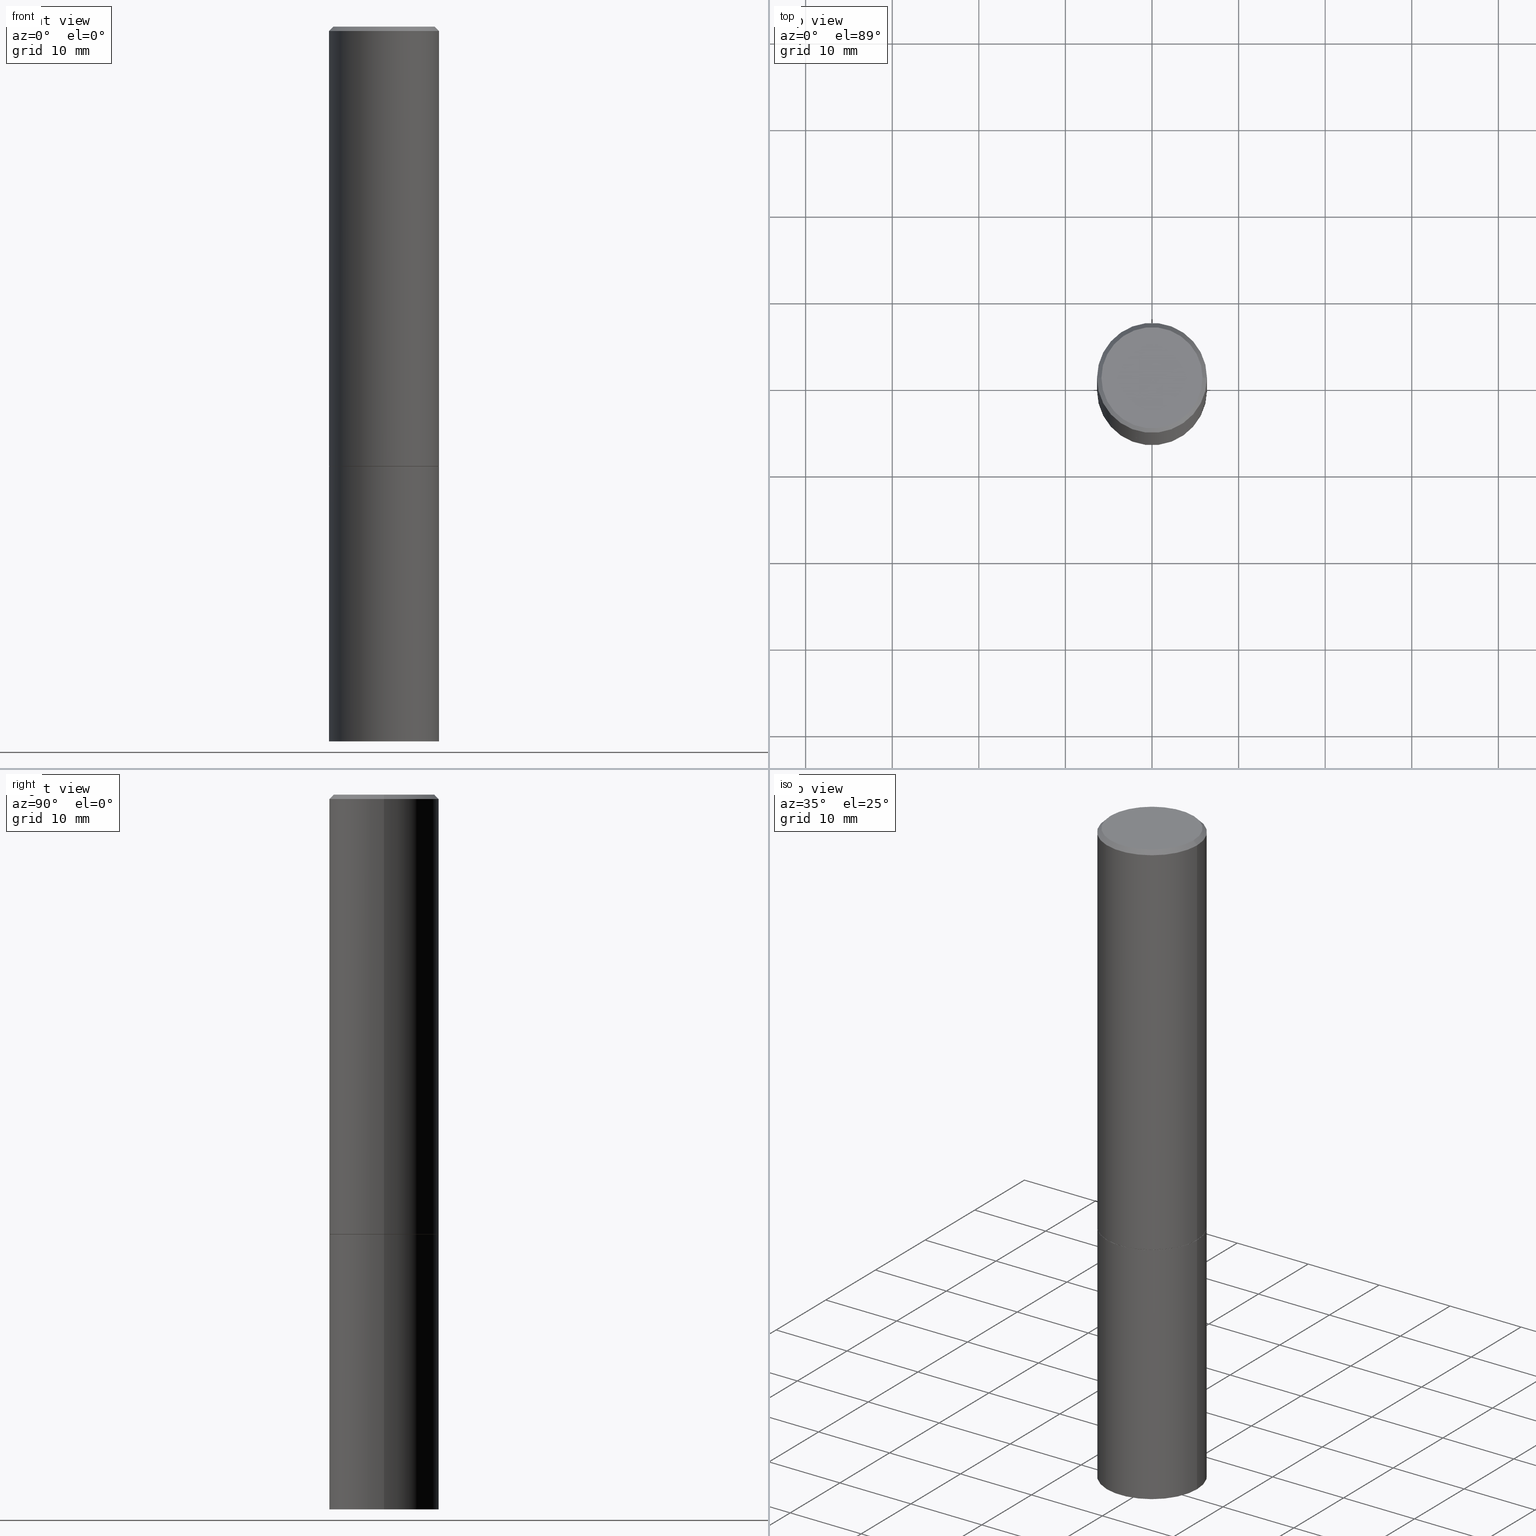
[diagram: canonical four-view strip — front | top / right | iso, engineering-drawing reading convention]
A machine part, canonical four-view strip (front | top / right | iso — engineering-drawing reading convention). The complete STEP part file that produces these views, byte-faithful:
ISO-10303-21;
HEADER;
FILE_DESCRIPTION (( 'STEP AP203' ),
    '1' );
FILE_NAME ('77174.STEP',
    '2024-02-29T15:41:23',
    ( '' ),
    ( '' ),
    'SwSTEP 2.0',
    'SolidWorks 2023',
    '' );
FILE_SCHEMA (( 'CONFIG_CONTROL_DESIGN' ));
ENDSEC;

DATA;
#1 = CC_DESIGN_DATE_AND_TIME_ASSIGNMENT ( #297, #353, ( #211 ) ) ;
#2 = ORIENTED_EDGE ( 'NONE', *, *, #317, .T. ) ;
#3 = VERTEX_POINT ( 'NONE', #323 ) ;
#4 = DIMENSIONAL_EXPONENTS ( 1.000000000000000000, 0.000000000000000000, 0.000000000000000000, 0.000000000000000000, 0.000000000000000000, 0.000000000000000000, 0.000000000000000000 ) ;
#5 = DIRECTION ( 'NONE',  ( 1.000000000000000000, -6.982962677686266711E-15, 4.876225828469314487E-29 ) ) ;
#6 = CYLINDRICAL_SURFACE ( 'NONE', #82, 0.2500000000000000000 ) ;
#7 = DIRECTION ( 'NONE',  ( 1.000000000000000000, -6.982962677686266711E-15, 4.876176775795935793E-29 ) ) ;
#8 = EDGE_LOOP ( 'NONE', ( #115, #71, #154, #20 ) ) ;
#9 = FACE_OUTER_BOUND ( 'NONE', #183, .T. ) ;
#10 = FACE_OUTER_BOUND ( 'NONE', #254, .T. ) ;
#11 = DIRECTION ( 'NONE',  ( -2.445468806185136597E-29, 3.491481338843145583E-15, 1.000000000000000000 ) ) ;
#12 = DATE_AND_TIME ( #351, #313 ) ;
#13 =( GEOMETRIC_REPRESENTATION_CONTEXT ( 3 ) GLOBAL_UNCERTAINTY_ASSIGNED_CONTEXT ( ( #267 ) ) GLOBAL_UNIT_ASSIGNED_CONTEXT ( ( #104, #160, #196 ) ) REPRESENTATION_CONTEXT ( 'NONE', 'WORKASPACE' ) );
#14 = PERSON_AND_ORGANIZATION ( #360, #210 ) ;
#15 = DIRECTION ( 'NONE',  ( -2.445468806185136597E-29, 3.491481338843145583E-15, 1.000000000000000000 ) ) ;
#16 = DATE_AND_TIME ( #45, #304 ) ;
#17 = APPLICATION_CONTEXT ( 'configuration controlled 3d designs of mechanical parts and assemblies' ) ;
#18 = EDGE_CURVE ( 'NONE', #193, #107, #264, .T. ) ;
#19 = PERSON_AND_ORGANIZATION_ROLE ( 'design_supplier' ) ;
#20 = ORIENTED_EDGE ( 'NONE', *, *, #59, .F. ) ;
#21 = VECTOR ( 'NONE', #144, 39.37007874015748143 ) ;
#22 = CC_DESIGN_APPROVAL ( #268, ( #156 ) ) ;
#23 = COORDINATED_UNIVERSAL_TIME_OFFSET ( 5, 0, .BEHIND. ) ;
#24 = VECTOR ( 'NONE', #332, 39.37007874015748143 ) ;
#25 = LOCAL_TIME ( 10, 41, 23.00000000000000000, #49 ) ;
#26 = LINE ( 'NONE', #226, #167 ) ;
#27 = ADVANCED_FACE ( 'NONE', ( #285 ), #312, .T. ) ;
#28 = CARTESIAN_POINT ( 'NONE',  ( -0.2500000000000000000, -7.388781675063007725E-15, -2.000000000000000000 ) ) ;
#29 = VERTEX_POINT ( 'NONE', #343 ) ;
#30 = DIRECTION ( 'NONE',  ( 1.000000000000000000, -6.982962677686262766E-15, 0.000000000000000000 ) ) ;
#31 = ORIENTED_EDGE ( 'NONE', *, *, #18, .T. ) ;
#32 = ADVANCED_FACE ( 'NONE', ( #316 ), #6, .T. ) ;
#33 = VERTEX_POINT ( 'NONE', #123 ) ;
#34 = PLANE ( 'NONE',  #245 ) ;
#35 = APPLICATION_CONTEXT ( 'configuration controlled 3d designs of mechanical parts and assemblies' ) ;
#36 = CARTESIAN_POINT ( 'NONE',  ( 4.890937612370287172E-31, -6.982962677686310098E-17, -0.02000000000000005593 ) ) ;
#37 = CARTESIAN_POINT ( 'NONE',  ( 0.000000000000000000, 0.000000000000000000, 0.000000000000000000 ) ) ;
#38 = EDGE_CURVE ( 'NONE', #135, #43, #155, .T. ) ;
#39 = LINE ( 'NONE', #212, #232 ) ;
#40 = LINE ( 'NONE', #345, #333 ) ;
#41 = APPROVAL_DATE_TIME ( #105, #292 ) ;
#42 = DIRECTION ( 'NONE',  ( 1.000000000000000000, -6.982962677686266711E-15, 0.000000000000000000 ) ) ;
#43 = VERTEX_POINT ( 'NONE', #98 ) ;
#44 = EDGE_CURVE ( 'NONE', #107, #193, #230, .T. ) ;
#45 = CALENDAR_DATE ( 2024, 29, 2 ) ;
#46 = DATE_TIME_ROLE ( 'creation_date' ) ;
#47 = LENGTH_MEASURE_WITH_UNIT ( LENGTH_MEASURE( 0.02539999999999999897 ), #119 );
#48 = EDGE_CURVE ( 'NONE', #3, #118, #101, .T. ) ;
#49 = COORDINATED_UNIVERSAL_TIME_OFFSET ( 5, 0, .BEHIND. ) ;
#50 = MECHANICAL_CONTEXT ( 'NONE', #17, 'mechanical' ) ;
#51 = AXIS2_PLACEMENT_3D ( 'NONE', #166, #113, #30 ) ;
#52 = APPROVAL_DATE_TIME ( #305, #180 ) ;
#53 = ORIENTED_EDGE ( 'NONE', *, *, #250, .F. ) ;
#54 = CARTESIAN_POINT ( 'NONE',  ( 4.890937612370272633E-29, -6.982962677686290376E-15, -1.999999999999999778 ) ) ;
#55 = CONICAL_SURFACE ( 'NONE', #217, 0.2499999999999998057, 0.7853981633974482790 ) ;
#56 = EDGE_LOOP ( 'NONE', ( #163, #224 ) ) ;
#57 = ADVANCED_BREP_SHAPE_REPRESENTATION ( '77174', ( #205, #314, #198 ), #13 ) ;
#58 = DIRECTION ( 'NONE',  ( -2.445468806185136597E-29, 3.491481338843145583E-15, 1.000000000000000000 ) ) ;
#59 = EDGE_CURVE ( 'NONE', #213, #193, #130, .T. ) ;
#60 = PRODUCT ( '77174', '77174', '', ( #50 ) ) ;
#61 = LOCAL_TIME ( 10, 41, 23.00000000000000000, #23 ) ;
#62 = DIRECTION ( 'NONE',  ( -2.445468806185136597E-29, 3.491481338843145583E-15, 1.000000000000000000 ) ) ;
#63 = FACE_OUTER_BOUND ( 'NONE', #111, .T. ) ;
#64 = DIRECTION ( 'NONE',  ( 2.438088387897960049E-29, -3.491481338843145188E-15, -1.000000000000000000 ) ) ;
#65 = EDGE_CURVE ( 'NONE', #213, #29, #298, .T. ) ;
#66 = AXIS2_PLACEMENT_3D ( 'NONE', #318, #62, #7 ) ;
#67 = DIRECTION ( 'NONE',  ( -1.000000000000000000, 6.982962677686265922E-15, -4.876176775795935793E-29 ) ) ;
#68 = ORIENTED_EDGE ( 'NONE', *, *, #317, .F. ) ;
#69 = CARTESIAN_POINT ( 'NONE',  ( 0.2489999999999999991, -8.721720384430171040E-15, -1.999999999999999778 ) ) ;
#70 = DIRECTION ( 'NONE',  ( -2.445468806185136597E-29, 3.491481338843145583E-15, 1.000000000000000000 ) ) ;
#71 = ORIENTED_EDGE ( 'NONE', *, *, #164, .T. ) ;
#72 = VECTOR ( 'NONE', #80, 39.37007874015748854 ) ;
#73 = CIRCLE ( 'NONE', #94, 0.2489999999999999991 ) ;
#74 = AXIS2_PLACEMENT_3D ( 'NONE', #357, #138, #255 ) ;
#75 = LOCAL_TIME ( 10, 41, 23.00000000000000000, #355 ) ;
#76 = PERSON_AND_ORGANIZATION ( #360, #210 ) ;
#77 = ORIENTED_EDGE ( 'NONE', *, *, #65, .F. ) ;
#78 = APPROVAL_ROLE ( '' ) ;
#79 = CIRCLE ( 'NONE', #238, 0.2299999999999997324 ) ;
#80 = DIRECTION ( 'NONE',  ( -0.7071067811865474617, 2.468850131082256666E-15, -0.7071067811865474617 ) ) ;
#81 = EDGE_CURVE ( 'NONE', #325, #33, #179, .T. ) ;
#82 = AXIS2_PLACEMENT_3D ( 'NONE', #120, #148, #258 ) ;
#83 = DIRECTION ( 'NONE',  ( -2.445468806185136597E-29, 3.491481338843145583E-15, 1.000000000000000000 ) ) ;
#84 = AXIS2_PLACEMENT_3D ( 'NONE', #252, #308, #170 ) ;
#85 = DIRECTION ( 'NONE',  ( 2.445468806185136597E-29, -3.491481338843145583E-15, -1.000000000000000000 ) ) ;
#86 = ORIENTED_EDGE ( 'NONE', *, *, #363, .F. ) ;
#87 = ORIENTED_EDGE ( 'NONE', *, *, #44, .F. ) ;
#88 = DIRECTION ( 'NONE',  ( 1.000000000000000000, -6.982962677686266711E-15, 4.876176775795935793E-29 ) ) ;
#89 = CARTESIAN_POINT ( 'NONE',  ( 4.890937612370272633E-29, -6.982962677686290376E-15, -1.999999999999999778 ) ) ;
#90 = CARTESIAN_POINT ( 'NONE',  ( -0.2489999999999999991, -5.208412811295418518E-15, -1.999999999999999778 ) ) ;
#91 = FACE_OUTER_BOUND ( 'NONE', #140, .T. ) ;
#92 = CARTESIAN_POINT ( 'NONE',  ( -0.2499999999999998057, 1.675911042644702196E-15, -0.02000000000000005593 ) ) ;
#93 = CC_DESIGN_PERSON_AND_ORGANIZATION_ASSIGNMENT ( #131, #133, ( #211 ) ) ;
#94 = AXIS2_PLACEMENT_3D ( 'NONE', #54, #307, #251 ) ;
#95 = DIRECTION ( 'NONE',  ( -2.445468806185136877E-29, 3.491481338843145188E-15, 1.000000000000000000 ) ) ;
#96 = EDGE_CURVE ( 'NONE', #354, #325, #336, .T. ) ;
#97 = CALENDAR_DATE ( 2024, 29, 2 ) ;
#98 = CARTESIAN_POINT ( 'NONE',  ( 0.2500000000000000000, -8.728703347107857054E-15, -2.000000000000000000 ) ) ;
#99 = ORIENTED_EDGE ( 'NONE', *, *, #281, .F. ) ;
#100 = APPLICATION_PROTOCOL_DEFINITION ( 'international standard', 'config_control_design', 1994, #17 ) ;
#101 = LINE ( 'NONE', #106, #24 ) ;
#102 = CLOSED_SHELL ( 'NONE', ( #32, #171, #263, #220 ) ) ;
#103 = EDGE_LOOP ( 'NONE', ( #99, #165, #324, #86 ) ) ;
#104 =( CONVERSION_BASED_UNIT ( 'INCH', #47 ) LENGTH_UNIT ( ) NAMED_UNIT ( #4 ) );
#105 = DATE_AND_TIME ( #97, #25 ) ;
#106 = CARTESIAN_POINT ( 'NONE',  ( -0.2500000000000000000, 1.776356839400250465E-15, -1.229733772563726445E-29 ) ) ;
#107 = VERTEX_POINT ( 'NONE', #365 ) ;
#108 = EDGE_LOOP ( 'NONE', ( #151, #283, #244, #341 ) ) ;
#109 = AXIS2_PLACEMENT_3D ( 'NONE', #181, #287, #315 ) ;
#110 = EDGE_CURVE ( 'NONE', #135, #3, #161, .T. ) ;
#111 = EDGE_LOOP ( 'NONE', ( #203, #176, #87, #293 ) ) ;
#112 = CC_DESIGN_PERSON_AND_ORGANIZATION_ASSIGNMENT ( #270, #328, ( #156 ) ) ;
#113 = DIRECTION ( 'NONE',  ( -2.445468806185136597E-29, 3.491481338843145583E-15, 1.000000000000000000 ) ) ;
#114 = CC_DESIGN_DATE_AND_TIME_ASSIGNMENT ( #12, #46, ( #301 ) ) ;
#115 = ORIENTED_EDGE ( 'NONE', *, *, #127, .F. ) ;
#116 = FACE_OUTER_BOUND ( 'NONE', #103, .T. ) ;
#117 = AXIS2_PLACEMENT_3D ( 'NONE', #340, #85, #200 ) ;
#118 = VERTEX_POINT ( 'NONE', #28 ) ;
#119 =( LENGTH_UNIT ( ) NAMED_UNIT ( * ) SI_UNIT ( $, .METRE. ) );
#120 = CARTESIAN_POINT ( 'NONE',  ( 0.000000000000000000, 0.000000000000000000, 0.000000000000000000 ) ) ;
#121 = CARTESIAN_POINT ( 'NONE',  ( 4.890937612370287172E-31, -6.982962677686310098E-17, -0.02000000000000005593 ) ) ;
#122 = AXIS2_PLACEMENT_3D ( 'NONE', #125, #209, #126 ) ;
#123 = CARTESIAN_POINT ( 'NONE',  ( -0.2500000000000000000, -1.748293572161903489E-15, -1.998999999999999888 ) ) ;
#124 = FACE_OUTER_BOUND ( 'NONE', #56, .T. ) ;
#125 = CARTESIAN_POINT ( 'NONE',  ( 0.000000000000000000, 0.000000000000000000, 0.000000000000000000 ) ) ;
#126 = DIRECTION ( 'NONE',  ( 1.000000000000000000, -6.982962677686266711E-15, 4.876176775795935793E-29 ) ) ;
#127 = EDGE_CURVE ( 'NONE', #29, #213, #79, .T. ) ;
#128 = ORIENTED_EDGE ( 'NONE', *, *, #309, .F. ) ;
#129 = DIRECTION ( 'NONE',  ( 0.000000000000000000, 0.000000000000000000, 1.000000000000000000 ) ) ;
#130 = LINE ( 'NONE', #219, #72 ) ;
#131 = PERSON_AND_ORGANIZATION ( #360, #210 ) ;
#132 = APPLICATION_PROTOCOL_DEFINITION ( 'international standard', 'config_control_design', 1994, #35 ) ;
#133 = PERSON_AND_ORGANIZATION_ROLE ( 'classification_officer' ) ;
#134 = CALENDAR_DATE ( 2024, 29, 2 ) ;
#135 = VERTEX_POINT ( 'NONE', #278 ) ;
#136 = CIRCLE ( 'NONE', #337, 0.2500000000000000000 ) ;
#137 = ORIENTED_EDGE ( 'NONE', *, *, #228, .F. ) ;
#138 = DIRECTION ( 'NONE',  ( -2.445468806185136597E-29, 3.491481338843145583E-15, 1.000000000000000000 ) ) ;
#139 = CARTESIAN_POINT ( 'NONE',  ( 4.890937612370272633E-29, -6.982962677686290376E-15, -1.999999999999999778 ) ) ;
#140 = EDGE_LOOP ( 'NONE', ( #243, #247 ) ) ;
#141 = ORIENTED_EDGE ( 'NONE', *, *, #309, .T. ) ;
#142 = DIRECTION ( 'NONE',  ( -2.445468806185136597E-29, 3.491481338843145583E-15, 1.000000000000000000 ) ) ;
#143 = AXIS2_PLACEMENT_3D ( 'NONE', #310, #58, #149 ) ;
#144 = DIRECTION ( 'NONE',  ( 0.7071067811866199593, -2.468850131083015945E-15, 0.7071067811864750752 ) ) ;
#145 = DIRECTION ( 'NONE',  ( 1.000000000000000000, -6.982962677686266711E-15, 0.000000000000000000 ) ) ;
#146 = DIRECTION ( 'NONE',  ( 2.438088387897960049E-29, -3.491481338843145188E-15, -1.000000000000000000 ) ) ;
#147 = EDGE_CURVE ( 'NONE', #218, #354, #73, .T. ) ;
#148 = DIRECTION ( 'NONE',  ( -2.445468806185136597E-29, 3.491481338843145583E-15, 1.000000000000000000 ) ) ;
#149 = DIRECTION ( 'NONE',  ( 1.000000000000000000, -6.982962677686266711E-15, 0.000000000000000000 ) ) ;
#150 = CARTESIAN_POINT ( 'NONE',  ( 4.890937612370273194E-29, -6.982962677686291165E-15, -2.000000000000000000 ) ) ;
#151 = ORIENTED_EDGE ( 'NONE', *, *, #110, .T. ) ;
#152 = CARTESIAN_POINT ( 'NONE',  ( 0.2500000000000000000, -8.725211865769014047E-15, -1.998999999999999888 ) ) ;
#153 = DESIGN_CONTEXT ( 'detailed design', #35, 'design' ) ;
#154 = ORIENTED_EDGE ( 'NONE', *, *, #44, .T. ) ;
#155 = LINE ( 'NONE', #265, #289 ) ;
#156 = PRODUCT_DEFINITION_FORMATION_WITH_SPECIFIED_SOURCE ( 'ANY', '', #60, .NOT_KNOWN. ) ;
#157 = PERSON_AND_ORGANIZATION ( #360, #210 ) ;
#158 = ORIENTED_EDGE ( 'NONE', *, *, #110, .F. ) ;
#159 = PERSON_AND_ORGANIZATION ( #360, #210 ) ;
#160 =( NAMED_UNIT ( * ) PLANE_ANGLE_UNIT ( ) SI_UNIT ( $, .RADIAN. ) );
#161 = CIRCLE ( 'NONE', #51, 0.2500000000000000000 ) ;
#162 = APPROVAL_ROLE ( '' ) ;
#163 = ORIENTED_EDGE ( 'NONE', *, *, #65, .T. ) ;
#164 = EDGE_CURVE ( 'NONE', #29, #107, #26, .T. ) ;
#165 = ORIENTED_EDGE ( 'NONE', *, *, #147, .T. ) ;
#166 = CARTESIAN_POINT ( 'NONE',  ( 7.947773620101693940E-29, -1.134731435124022443E-14, -3.250000000000000000 ) ) ;
#167 = VECTOR ( 'NONE', #223, 39.37007874015748854 ) ;
#168 = CARTESIAN_POINT ( 'NONE',  ( 4.888492143564087591E-29, -6.979471196347447369E-15, -1.998999999999999888 ) ) ;
#169 = ADVANCED_FACE ( 'NONE', ( #116 ), #206, .T. ) ;
#170 = DIRECTION ( 'NONE',  ( -1.000000000000000000, 6.982962677686265922E-15, -4.876176775795935793E-29 ) ) ;
#171 = ADVANCED_FACE ( 'NONE', ( #306 ), #199, .T. ) ;
#172 = DIRECTION ( 'NONE',  ( 1.000000000000000000, -6.982962677686266711E-15, 0.000000000000000000 ) ) ;
#173 = ORIENTED_EDGE ( 'NONE', *, *, #18, .F. ) ;
#174 = ADVANCED_FACE ( 'NONE', ( #279 ), #352, .T. ) ;
#175 = DIRECTION ( 'NONE',  ( 1.000000000000000000, -6.982962677686265922E-15, 4.876176775795935793E-29 ) ) ;
#176 = ORIENTED_EDGE ( 'NONE', *, *, #228, .T. ) ;
#177 = DIRECTION ( 'NONE',  ( -2.445468806185136597E-29, 3.491481338843145583E-15, 1.000000000000000000 ) ) ;
#178 = PLANE ( 'NONE',  #327 ) ;
#179 = CIRCLE ( 'NONE', #366, 0.2500000000000000000 ) ;
#180 = APPROVAL ( #194, 'UNSPECIFIED' ) ;
#181 = CARTESIAN_POINT ( 'NONE',  ( 7.947773620101693940E-29, -1.134731435124022443E-14, -3.250000000000000000 ) ) ;
#182 = CC_DESIGN_PERSON_AND_ORGANIZATION_ASSIGNMENT ( #159, #19, ( #156 ) ) ;
#183 = EDGE_LOOP ( 'NONE', ( #274, #77, #216, #31 ) ) ;
#184 = CARTESIAN_POINT ( 'NONE',  ( 4.888492143564087591E-29, -6.979471196347447369E-15, -1.998999999999999888 ) ) ;
#185 = DIRECTION ( 'NONE',  ( 1.000000000000000000, -6.982962677686266711E-15, 0.000000000000000000 ) ) ;
#186 = APPROVAL_STATUS ( 'not_yet_approved' ) ;
#187 = PRODUCT_DEFINITION_SHAPE ( 'NONE', 'NONE',  #301 ) ;
#188 = CIRCLE ( 'NONE', #253, 0.2489999999999999991 ) ;
#189 = COORDINATED_UNIVERSAL_TIME_OFFSET ( 5, 0, .BEHIND. ) ;
#190 = PERSON_AND_ORGANIZATION ( #360, #210 ) ;
#191 = EDGE_CURVE ( 'NONE', #43, #118, #276, .T. ) ;
#192 = ORIENTED_EDGE ( 'NONE', *, *, #38, .T. ) ;
#193 = VERTEX_POINT ( 'NONE', #92 ) ;
#194 = APPROVAL_STATUS ( 'not_yet_approved' ) ;
#195 = VECTOR ( 'NONE', #95, 39.37007874015748143 ) ;
#196 =( NAMED_UNIT ( * ) SI_UNIT ( $, .STERADIAN. ) SOLID_ANGLE_UNIT ( ) );
#197 = DIRECTION ( 'NONE',  ( 1.000000000000000000, -6.982962677686266711E-15, 0.000000000000000000 ) ) ;
#198 = AXIS2_PLACEMENT_3D ( 'NONE', #326, #129, #271 ) ;
#199 = PLANE ( 'NONE',  #84 ) ;
#200 = DIRECTION ( 'NONE',  ( -1.000000000000000000, 6.982962677686266711E-15, 0.000000000000000000 ) ) ;
#201 = ORIENTED_EDGE ( 'NONE', *, *, #96, .F. ) ;
#202 = DIRECTION ( 'NONE',  ( 1.000000000000000000, -6.982962677686266711E-15, 0.000000000000000000 ) ) ;
#203 = ORIENTED_EDGE ( 'NONE', *, *, #81, .T. ) ;
#204 = CARTESIAN_POINT ( 'NONE',  ( -0.2299999999999997324, 1.640996229256270744E-15, 4.268512490089056766E-18 ) ) ;
#205 = MANIFOLD_SOLID_BREP ( 'Body-Move/Copy2[1]', #102 ) ;
#206 = CONICAL_SURFACE ( 'NONE', #272, 0.2489999999999999991, 0.7853981633975507526 ) ;
#207 = CARTESIAN_POINT ( 'NONE',  ( 4.890937612370272633E-29, -6.982962677686290376E-15, -1.999999999999999778 ) ) ;
#208 = CARTESIAN_POINT ( 'NONE',  ( 1.606081415867839292E-15, 0.2299999999999997324, -8.009064516888723911E-16 ) ) ;
#209 = DIRECTION ( 'NONE',  ( -2.445468806185136597E-29, 3.491481338843145583E-15, 1.000000000000000000 ) ) ;
#210 = ORGANIZATION ( 'UNSPECIFIED', 'UNSPECIFIED', '' ) ;
#211 = SECURITY_CLASSIFICATION ( '', '', #246 ) ;
#212 = CARTESIAN_POINT ( 'NONE',  ( -0.2489999999999999991, -5.213711265643640920E-15, -1.999999999999999778 ) ) ;
#213 = VERTEX_POINT ( 'NONE', #204 ) ;
#214 = ORIENTED_EDGE ( 'NONE', *, *, #147, .F. ) ;
#215 = CARTESIAN_POINT ( 'NONE',  ( 4.890937612370287172E-31, -6.982962677686310098E-17, -0.02000000000000005593 ) ) ;
#216 = ORIENTED_EDGE ( 'NONE', *, *, #59, .T. ) ;
#217 = AXIS2_PLACEMENT_3D ( 'NONE', #121, #346, #294 ) ;
#218 = VERTEX_POINT ( 'NONE', #90 ) ;
#219 = CARTESIAN_POINT ( 'NONE',  ( -0.2499999999999998057, 1.675911042644702196E-15, -0.02000000000000005593 ) ) ;
#220 = ADVANCED_FACE ( 'NONE', ( #291 ), #322, .T. ) ;
#221 = CLOSED_SHELL ( 'NONE', ( #27, #275, #174, #288, #335, #169, #242, #334 ) ) ;
#222 = APPROVAL_PERSON_ORGANIZATION ( #331, #180, #162 ) ;
#223 = DIRECTION ( 'NONE',  ( 0.7071067811865474617, -7.319954787623256045E-15, -0.7071067811865474617 ) ) ;
#224 = ORIENTED_EDGE ( 'NONE', *, *, #127, .T. ) ;
#225 = CC_DESIGN_PERSON_AND_ORGANIZATION_ASSIGNMENT ( #190, #300, ( #60 ) ) ;
#226 = CARTESIAN_POINT ( 'NONE',  ( 0.2499999999999998057, -1.784954126219744611E-15, -0.02000000000000005593 ) ) ;
#227 = CIRCLE ( 'NONE', #320, 0.2500000000000000000 ) ;
#228 = EDGE_CURVE ( 'NONE', #33, #193, #40, .T. ) ;
#229 = FACE_OUTER_BOUND ( 'NONE', #339, .T. ) ;
#230 = CIRCLE ( 'NONE', #249, 0.2499999999999998057 ) ;
#231 = DIRECTION ( 'NONE',  ( 1.000000000000000000, -6.982962677686266711E-15, 0.000000000000000000 ) ) ;
#232 = VECTOR ( 'NONE', #234, 39.37007874015748143 ) ;
#233 = CC_DESIGN_APPROVAL ( #292, ( #211 ) ) ;
#234 = DIRECTION ( 'NONE',  ( -0.7071067811866199593, 7.493145998870616062E-15, 0.7071067811864750752 ) ) ;
#235 = CC_DESIGN_PERSON_AND_ORGANIZATION_ASSIGNMENT ( #14, #240, ( #301 ) ) ;
#236 = DIRECTION ( 'NONE',  ( -2.445468806185136597E-29, 3.491481338843145583E-15, 1.000000000000000000 ) ) ;
#237 = LINE ( 'NONE', #349, #195 ) ;
#238 = AXIS2_PLACEMENT_3D ( 'NONE', #256, #142, #5 ) ;
#239 = APPROVAL_PERSON_ORGANIZATION ( #76, #292, #78 ) ;
#240 = PERSON_AND_ORGANIZATION_ROLE ( 'creator' ) ;
#241 = DIRECTION ( 'NONE',  ( -2.445468806185136877E-29, 3.491481338843145188E-15, 1.000000000000000000 ) ) ;
#242 = ADVANCED_FACE ( 'NONE', ( #229 ), #178, .F. ) ;
#243 = ORIENTED_EDGE ( 'NONE', *, *, #191, .T. ) ;
#244 = ORIENTED_EDGE ( 'NONE', *, *, #191, .F. ) ;
#245 = AXIS2_PLACEMENT_3D ( 'NONE', #342, #146, #67 ) ;
#246 = SECURITY_CLASSIFICATION_LEVEL ( 'unclassified' ) ;
#247 = ORIENTED_EDGE ( 'NONE', *, *, #250, .T. ) ;
#248 = APPROVAL_DATE_TIME ( #16, #268 ) ;
#249 = AXIS2_PLACEMENT_3D ( 'NONE', #215, #280, #172 ) ;
#250 = EDGE_CURVE ( 'NONE', #118, #43, #136, .T. ) ;
#251 = DIRECTION ( 'NONE',  ( 1.000000000000000000, -6.982962677686266711E-15, 0.000000000000000000 ) ) ;
#252 = CARTESIAN_POINT ( 'NONE',  ( 1.745740669421645958E-15, 0.2499999999999886480, -3.250000000000001332 ) ) ;
#253 = AXIS2_PLACEMENT_3D ( 'NONE', #347, #11, #231 ) ;
#254 = EDGE_LOOP ( 'NONE', ( #137, #330, #356, #173 ) ) ;
#255 = DIRECTION ( 'NONE',  ( 1.000000000000000000, -6.982962677686266711E-15, 4.876225828469314487E-29 ) ) ;
#256 = CARTESIAN_POINT ( 'NONE',  ( -1.043851414335219820E-46, 1.490343170380447200E-32, 4.268512490100411279E-18 ) ) ;
#257 = CYLINDRICAL_SURFACE ( 'NONE', #348, 0.2499999999999998890 ) ;
#258 = DIRECTION ( 'NONE',  ( 1.000000000000000000, -6.982962677686266711E-15, 4.876176775795935793E-29 ) ) ;
#259 = DIRECTION ( 'NONE',  ( -2.445468806185136877E-29, 3.491481338843145188E-15, 1.000000000000000000 ) ) ;
#260 = DIRECTION ( 'NONE',  ( -1.000000000000000000, 6.982962677686265922E-15, -4.876176775795935793E-29 ) ) ;
#261 = PLANE ( 'NONE',  #277 ) ;
#262 = SHAPE_DEFINITION_REPRESENTATION ( #187, #57 ) ;
#263 = ADVANCED_FACE ( 'NONE', ( #91 ), #34, .F. ) ;
#264 = CIRCLE ( 'NONE', #303, 0.2499999999999998057 ) ;
#265 = CARTESIAN_POINT ( 'NONE',  ( 0.2500000000000000000, -1.745740669421566678E-15, 1.219044193948983948E-29 ) ) ;
#266 = CC_DESIGN_APPROVAL ( #180, ( #301 ) ) ;
#267 = UNCERTAINTY_MEASURE_WITH_UNIT (LENGTH_MEASURE( 1.000000000000000082E-05 ), #104, 'distance_accuracy_value', 'NONE');
#268 = APPROVAL ( #186, 'UNSPECIFIED' ) ;
#269 = EDGE_LOOP ( 'NONE', ( #158, #68 ) ) ;
#270 = PERSON_AND_ORGANIZATION ( #360, #210 ) ;
#271 = DIRECTION ( 'NONE',  ( 1.000000000000000000, 0.000000000000000000, 0.000000000000000000 ) ) ;
#272 = AXIS2_PLACEMENT_3D ( 'NONE', #139, #83, #197 ) ;
#273 = CALENDAR_DATE ( 2024, 29, 2 ) ;
#274 = ORIENTED_EDGE ( 'NONE', *, *, #164, .F. ) ;
#275 = ADVANCED_FACE ( 'NONE', ( #63 ), #257, .T. ) ;
#276 = CIRCLE ( 'NONE', #143, 0.2500000000000000000 ) ;
#277 = AXIS2_PLACEMENT_3D ( 'NONE', #208, #64, #260 ) ;
#278 = CARTESIAN_POINT ( 'NONE',  ( 0.2500000000000000000, -1.309305502066178953E-14, -3.250000000000000000 ) ) ;
#279 = FACE_OUTER_BOUND ( 'NONE', #8, .T. ) ;
#280 = DIRECTION ( 'NONE',  ( -2.445468806185136597E-29, 3.491481338843145583E-15, 1.000000000000000000 ) ) ;
#281 = EDGE_CURVE ( 'NONE', #218, #33, #39, .T. ) ;
#282 = CARTESIAN_POINT ( 'NONE',  ( 0.2489999999999999991, -8.721720384430171040E-15, -1.999999999999999778 ) ) ;
#283 = ORIENTED_EDGE ( 'NONE', *, *, #48, .T. ) ;
#284 = PRODUCT_RELATED_PRODUCT_CATEGORY ( 'detail', '', ( #60 ) ) ;
#285 = FACE_OUTER_BOUND ( 'NONE', #364, .T. ) ;
#286 = DIRECTION ( 'NONE',  ( -2.438088387897960049E-29, 3.491481338843145188E-15, 1.000000000000000000 ) ) ;
#287 = DIRECTION ( 'NONE',  ( -2.445468806185136597E-29, 3.491481338843145583E-15, 1.000000000000000000 ) ) ;
#288 = ADVANCED_FACE ( 'NONE', ( #9 ), #55, .T. ) ;
#289 = VECTOR ( 'NONE', #241, 39.37007874015748143 ) ;
#290 = CIRCLE ( 'NONE', #109, 0.2500000000000000000 ) ;
#291 = FACE_OUTER_BOUND ( 'NONE', #350, .T. ) ;
#292 = APPROVAL ( #329, 'UNSPECIFIED' ) ;
#293 = ORIENTED_EDGE ( 'NONE', *, *, #344, .F. ) ;
#294 = DIRECTION ( 'NONE',  ( -1.000000000000000000, 6.982962677686266711E-15, 0.000000000000000000 ) ) ;
#295 = ORIENTED_EDGE ( 'NONE', *, *, #48, .F. ) ;
#296 = DIRECTION ( 'NONE',  ( -2.445468806185136597E-29, 3.491481338843145583E-15, 1.000000000000000000 ) ) ;
#297 = DATE_AND_TIME ( #273, #75 ) ;
#298 = CIRCLE ( 'NONE', #74, 0.2299999999999997324 ) ;
#299 = COORDINATED_UNIVERSAL_TIME_OFFSET ( 5, 0, .BEHIND. ) ;
#300 = PERSON_AND_ORGANIZATION_ROLE ( 'design_owner' ) ;
#301 = PRODUCT_DEFINITION ( 'UNKNOWN', '', #156, #153 ) ;
#302 = APPROVAL_ROLE ( '' ) ;
#303 = AXIS2_PLACEMENT_3D ( 'NONE', #36, #70, #185 ) ;
#304 = LOCAL_TIME ( 10, 41, 23.00000000000000000, #299 ) ;
#305 = DATE_AND_TIME ( #134, #61 ) ;
#306 = FACE_OUTER_BOUND ( 'NONE', #269, .T. ) ;
#307 = DIRECTION ( 'NONE',  ( -2.445468806185136597E-29, 3.491481338843145583E-15, 1.000000000000000000 ) ) ;
#308 = DIRECTION ( 'NONE',  ( 2.438088387897960049E-29, -3.491481338843145188E-15, -1.000000000000000000 ) ) ;
#309 = EDGE_CURVE ( 'NONE', #354, #218, #188, .T. ) ;
#310 = CARTESIAN_POINT ( 'NONE',  ( 4.890937612370273194E-29, -6.982962677686291165E-15, -2.000000000000000000 ) ) ;
#311 = ORIENTED_EDGE ( 'NONE', *, *, #281, .T. ) ;
#312 = CONICAL_SURFACE ( 'NONE', #358, 0.2489999999999999991, 0.7853981633975507526 ) ;
#313 = LOCAL_TIME ( 10, 41, 23.00000000000000000, #189 ) ;
#314 = MANIFOLD_SOLID_BREP ( 'Body-Move/Copy2[2]', #221 ) ;
#315 = DIRECTION ( 'NONE',  ( 1.000000000000000000, -6.982962677686262766E-15, 0.000000000000000000 ) ) ;
#316 = FACE_OUTER_BOUND ( 'NONE', #108, .T. ) ;
#317 = EDGE_CURVE ( 'NONE', #3, #135, #290, .T. ) ;
#318 = CARTESIAN_POINT ( 'NONE',  ( 0.000000000000000000, 0.000000000000000000, 0.000000000000000000 ) ) ;
#319 = DIRECTION ( 'NONE',  ( 1.000000000000000000, -6.982962677686266711E-15, 0.000000000000000000 ) ) ;
#320 = AXIS2_PLACEMENT_3D ( 'NONE', #184, #296, #42 ) ;
#321 = CYLINDRICAL_SURFACE ( 'NONE', #122, 0.2499999999999998890 ) ;
#322 = CYLINDRICAL_SURFACE ( 'NONE', #66, 0.2500000000000000000 ) ;
#323 = CARTESIAN_POINT ( 'NONE',  ( -0.2500000000000000000, -7.388781675063007725E-15, -3.250000000000000000 ) ) ;
#324 = ORIENTED_EDGE ( 'NONE', *, *, #96, .T. ) ;
#325 = VERTEX_POINT ( 'NONE', #152 ) ;
#326 = CARTESIAN_POINT ( 'NONE',  ( 0.000000000000000000, 0.000000000000000000, 0.000000000000000000 ) ) ;
#327 = AXIS2_PLACEMENT_3D ( 'NONE', #207, #286, #175 ) ;
#328 = PERSON_AND_ORGANIZATION_ROLE ( 'creator' ) ;
#329 = APPROVAL_STATUS ( 'not_yet_approved' ) ;
#330 = ORIENTED_EDGE ( 'NONE', *, *, #363, .T. ) ;
#331 = PERSON_AND_ORGANIZATION ( #360, #210 ) ;
#332 = DIRECTION ( 'NONE',  ( -2.445468806185136877E-29, 3.491481338843145188E-15, 1.000000000000000000 ) ) ;
#333 = VECTOR ( 'NONE', #259, 39.37007874015748143 ) ;
#334 = ADVANCED_FACE ( 'NONE', ( #124 ), #261, .F. ) ;
#335 = ADVANCED_FACE ( 'NONE', ( #10 ), #321, .T. ) ;
#336 = LINE ( 'NONE', #282, #21 ) ;
#337 = AXIS2_PLACEMENT_3D ( 'NONE', #150, #236, #319 ) ;
#338 = CC_DESIGN_SECURITY_CLASSIFICATION ( #211, ( #156 ) ) ;
#339 = EDGE_LOOP ( 'NONE', ( #128, #214 ) ) ;
#340 = CARTESIAN_POINT ( 'NONE',  ( 4.890937612370287172E-31, -6.982962677686310098E-17, -0.02000000000000005593 ) ) ;
#341 = ORIENTED_EDGE ( 'NONE', *, *, #38, .F. ) ;
#342 = CARTESIAN_POINT ( 'NONE',  ( 1.745740669421615390E-15, 0.2499999999999930334, -2.000000000000000888 ) ) ;
#343 = CARTESIAN_POINT ( 'NONE',  ( 0.2299999999999997324, -1.681434332853597433E-15, 4.268512490111905999E-18 ) ) ;
#344 = EDGE_CURVE ( 'NONE', #325, #107, #237, .T. ) ;
#345 = CARTESIAN_POINT ( 'NONE',  ( -0.2499999999999998890, 1.776356839400249676E-15, -1.229733772563726025E-29 ) ) ;
#346 = DIRECTION ( 'NONE',  ( 2.445468806185136597E-29, -3.491481338843145583E-15, -1.000000000000000000 ) ) ;
#347 = CARTESIAN_POINT ( 'NONE',  ( 4.890937612370272633E-29, -6.982962677686290376E-15, -1.999999999999999778 ) ) ;
#348 = AXIS2_PLACEMENT_3D ( 'NONE', #37, #177, #88 ) ;
#349 = CARTESIAN_POINT ( 'NONE',  ( 0.2499999999999998890, -1.745740669421565889E-15, 1.219044193948983388E-29 ) ) ;
#350 = EDGE_LOOP ( 'NONE', ( #295, #2, #192, #53 ) ) ;
#351 = CALENDAR_DATE ( 2024, 29, 2 ) ;
#352 = CONICAL_SURFACE ( 'NONE', #117, 0.2499999999999998057, 0.7853981633974482790 ) ;
#353 = DATE_TIME_ROLE ( 'classification_date' ) ;
#354 = VERTEX_POINT ( 'NONE', #69 ) ;
#355 = COORDINATED_UNIVERSAL_TIME_OFFSET ( 5, 0, .BEHIND. ) ;
#356 = ORIENTED_EDGE ( 'NONE', *, *, #344, .T. ) ;
#357 = CARTESIAN_POINT ( 'NONE',  ( -1.043851414335219820E-46, 1.490343170380447200E-32, 4.268512490100411279E-18 ) ) ;
#358 = AXIS2_PLACEMENT_3D ( 'NONE', #89, #15, #145 ) ;
#359 = APPROVAL_PERSON_ORGANIZATION ( #157, #268, #302 ) ;
#360 = PERSON ( 'UNSPECIFIED', 'UNSPECIFIED', 'UNSPECIFIED', ('UNSPECIFIED'), ('UNSPECIFIED'), ('UNSPECIFIED') ) ;
#361 = ORIENTED_EDGE ( 'NONE', *, *, #81, .F. ) ;
#362 = DIRECTION ( 'NONE',  ( -2.445468806185136597E-29, 3.491481338843145583E-15, 1.000000000000000000 ) ) ;
#363 = EDGE_CURVE ( 'NONE', #33, #325, #227, .T. ) ;
#364 = EDGE_LOOP ( 'NONE', ( #141, #311, #361, #201 ) ) ;
#365 = CARTESIAN_POINT ( 'NONE',  ( 0.2499999999999998057, -1.784954126219744611E-15, -0.02000000000000005593 ) ) ;
#366 = AXIS2_PLACEMENT_3D ( 'NONE', #168, #362, #202 ) ;
ENDSEC;
END-ISO-10303-21;
